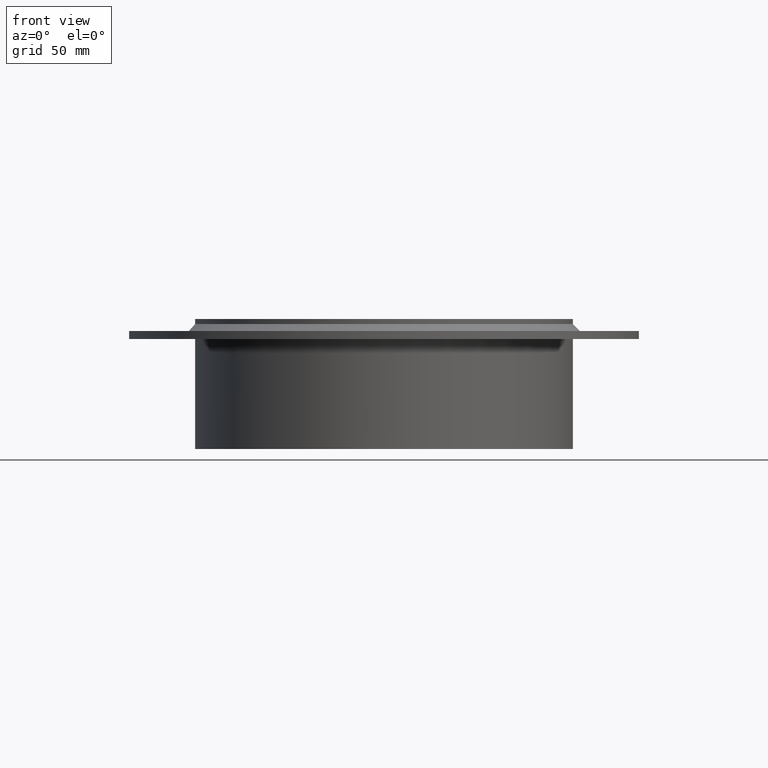
[diagram: clean part render]
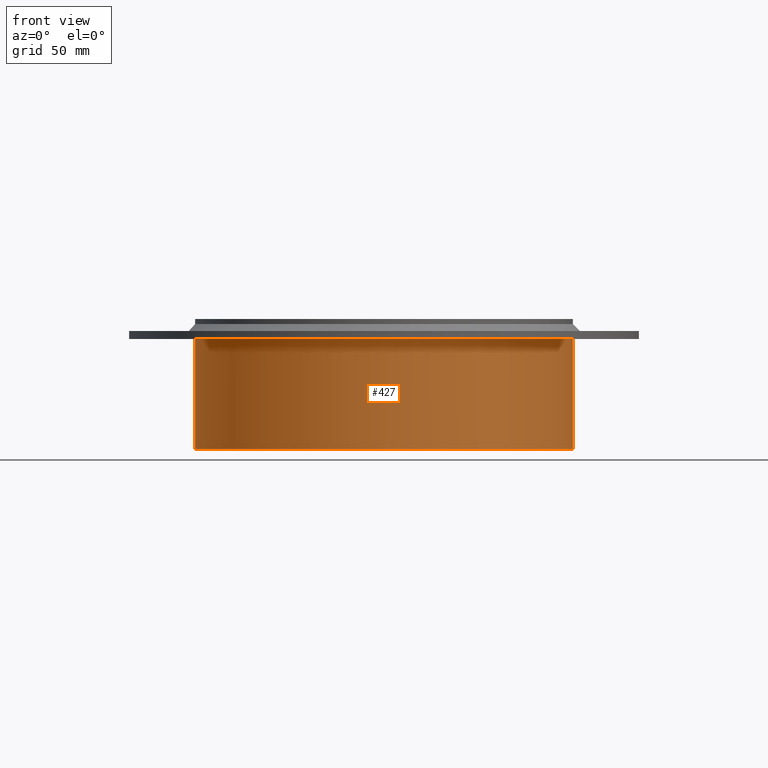
[diagram: same view with one face highlighted and labeled with its STEP entity id]
A machine part, front view. The second image highlights one B-rep face of the part: STEP entity #427.
In plain terms, the highlighted cylindrical surface (bore or boss wall) has radius 94.5 mm, axis along (0, 0, -1).
Its self-contained STEP definition (entity closure, byte-faithful):
#356=CARTESIAN_POINT('',(94.500000000000014,1.157291E-014,-10.0));
#357=VERTEX_POINT('',#356);
#358=CARTESIAN_POINT('',(0.0,0.0,-10.0));
#359=DIRECTION('',(0.0,0.0,-1.0));
#360=DIRECTION('',(-1.0,0.0,0.0));
#361=AXIS2_PLACEMENT_3D('',#358,#359,#360);
#362=CIRCLE('',#361,94.500000000000014);
#363=EDGE_CURVE('',#357,#357,#362,.T.);
#408=CARTESIAN_POINT('',(0.0,0.0,0.0));
#409=DIRECTION('',(0.0,0.0,-1.0));
#410=DIRECTION('',(-1.0,0.0,0.0));
#411=AXIS2_PLACEMENT_3D('',#408,#409,#410);
#412=CYLINDRICAL_SURFACE('',#411,94.500000000000014);
#413=ORIENTED_EDGE('',*,*,#363,.T.);
#414=EDGE_LOOP('',(#413));
#415=FACE_OUTER_BOUND('',#414,.T.);
#416=CARTESIAN_POINT('',(94.500000000000014,1.157291E-014,-65.0));
#417=VERTEX_POINT('',#416);
#418=CARTESIAN_POINT('',(0.0,0.0,-65.0));
#419=DIRECTION('',(0.0,0.0,-1.0));
#420=DIRECTION('',(-1.0,0.0,0.0));
#421=AXIS2_PLACEMENT_3D('',#418,#419,#420);
#422=CIRCLE('',#421,94.500000000000014);
#423=EDGE_CURVE('',#417,#417,#422,.T.);
#424=ORIENTED_EDGE('',*,*,#423,.F.);
#425=EDGE_LOOP('',(#424));
#426=FACE_BOUND('',#425,.T.);
#427=ADVANCED_FACE('',(#415,#426),#412,.T.);